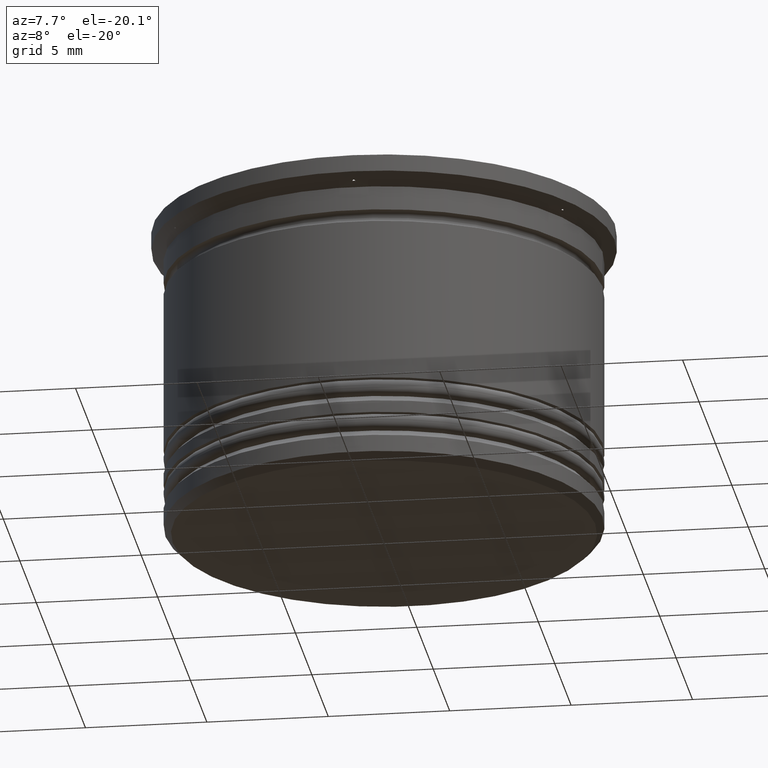
[diagram: clean part render]
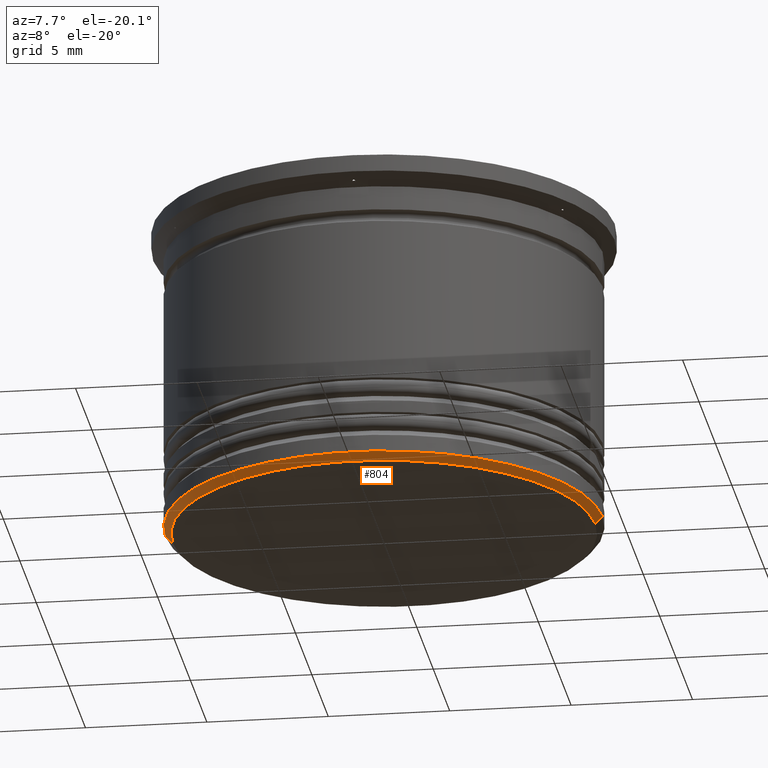
[diagram: same view with one face highlighted and labeled with its STEP entity id]
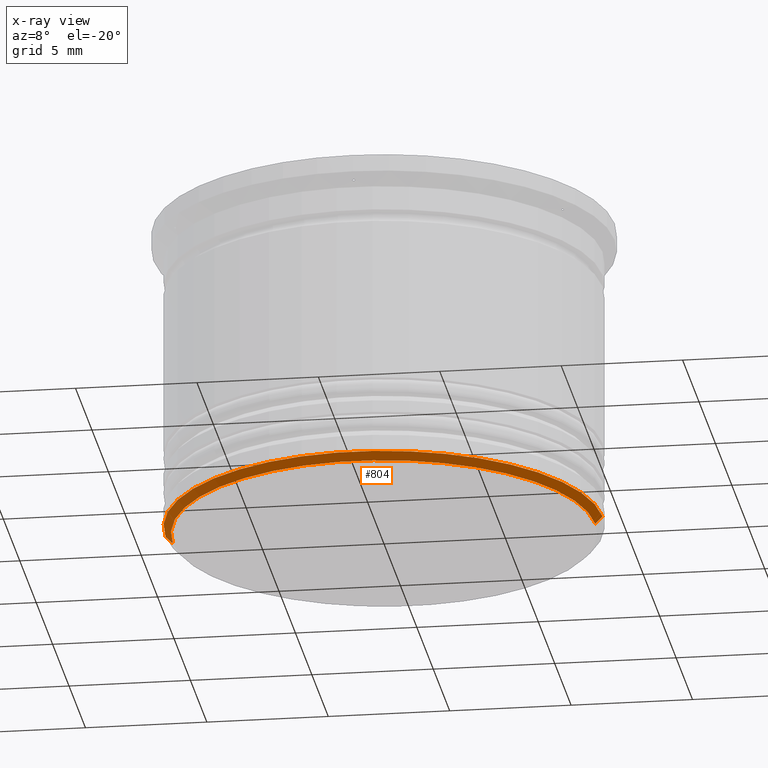
[diagram: x-ray of the same camera — body ghosted, the highlighted face saturated]
A machine part, auxiliary view. The second image highlights one B-rep face of the part: STEP entity #804.
The next image is the same camera in x-ray: the body ghosted, the highlighted face saturated — about 0% of this face is hidden behind the body in this view.
In plain terms, the highlighted conical surface has half-angle 45 deg.
Its self-contained STEP definition (entity closure, byte-faithful):
#20 = VERTEX_POINT ( 'NONE', #2118 ) ;
#63 = DIRECTION ( 'NONE',  ( 0.7071067811865516806, 0.000000000000000000, 0.7071067811865434649 ) ) ;
#76 = CARTESIAN_POINT ( 'NONE',  ( -9.000000000000001776, 1.102182119232617911E-15, -12.70000000000000817 ) ) ;
#83 = EDGE_CURVE ( 'NONE', #1686, #20, #1492, .T. ) ;
#204 = AXIS2_PLACEMENT_3D ( 'NONE', #512, #499, #1018 ) ;
#376 = ORIENTED_EDGE ( 'NONE', *, *, #2105, .T. ) ;
#399 = LINE ( 'NONE', #1392, #703 ) ;
#494 = DIRECTION ( 'NONE',  ( -0.000000000000000000, -0.000000000000000000, 1.000000000000000000 ) ) ;
#499 = DIRECTION ( 'NONE',  ( 0.000000000000000000, 0.000000000000000000, -1.000000000000000000 ) ) ;
#512 = CARTESIAN_POINT ( 'NONE',  ( 0.000000000000000000, 0.000000000000000000, -13.00000000000000178 ) ) ;
#567 = ORIENTED_EDGE ( 'NONE', *, *, #83, .F. ) ;
#635 = DIRECTION ( 'NONE',  ( -0.000000000000000000, -0.000000000000000000, 1.000000000000000000 ) ) ;
#636 = CARTESIAN_POINT ( 'NONE',  ( 0.000000000000000000, 0.000000000000000000, -12.70000000000000817 ) ) ;
#677 = ORIENTED_EDGE ( 'NONE', *, *, #1965, .F. ) ;
#703 = VECTOR ( 'NONE', #63, 1000.000000000000000 ) ;
#723 = LINE ( 'NONE', #1742, #1858 ) ;
#804 = ADVANCED_FACE ( 'NONE', ( #1661 ), #1137, .T. ) ;
#806 = CARTESIAN_POINT ( 'NONE',  ( 0.000000000000000000, 0.000000000000000000, -12.70000000000000817 ) ) ;
#975 = DIRECTION ( 'NONE',  ( -1.000000000000000000, 0.000000000000000000, 0.000000000000000000 ) ) ;
#1018 = DIRECTION ( 'NONE',  ( -1.000000000000000000, 0.000000000000000000, 0.000000000000000000 ) ) ;
#1041 = CARTESIAN_POINT ( 'NONE',  ( 8.700000000000004619, 0.000000000000000000, -13.00000000000000178 ) ) ;
#1137 = CONICAL_SURFACE ( 'NONE', #2049, 9.000000000000001776, 0.7853981633974541632 ) ;
#1212 = DIRECTION ( 'NONE',  ( -0.7071067811865516806, 8.659560562354984627E-17, 0.7071067811865434649 ) ) ;
#1248 = EDGE_CURVE ( 'NONE', #1369, #1686, #723, .T. ) ;
#1369 = VERTEX_POINT ( 'NONE', #1448 ) ;
#1392 = CARTESIAN_POINT ( 'NONE',  ( 9.000000000000001776, 0.000000000000000000, -12.70000000000000817 ) ) ;
#1448 = CARTESIAN_POINT ( 'NONE',  ( -8.700000000000004619, 1.083812417245408073E-15, -13.00000000000000178 ) ) ;
#1492 = CIRCLE ( 'NONE', #1598, 9.000000000000001776 ) ;
#1493 = ORIENTED_EDGE ( 'NONE', *, *, #1248, .F. ) ;
#1598 = AXIS2_PLACEMENT_3D ( 'NONE', #806, #635, #975 ) ;
#1661 = FACE_OUTER_BOUND ( 'NONE', #1810, .T. ) ;
#1686 = VERTEX_POINT ( 'NONE', #76 ) ;
#1742 = CARTESIAN_POINT ( 'NONE',  ( -9.000000000000001776, 1.102182119232617911E-15, -12.70000000000000817 ) ) ;
#1810 = EDGE_LOOP ( 'NONE', ( #1493, #677, #376, #567 ) ) ;
#1858 = VECTOR ( 'NONE', #1212, 1000.000000000000000 ) ;
#1957 = DIRECTION ( 'NONE',  ( 1.000000000000000000, 0.000000000000000000, 0.000000000000000000 ) ) ;
#1965 = EDGE_CURVE ( 'NONE', #2040, #1369, #2016, .T. ) ;
#2016 = CIRCLE ( 'NONE', #204, 8.700000000000004619 ) ;
#2040 = VERTEX_POINT ( 'NONE', #1041 ) ;
#2049 = AXIS2_PLACEMENT_3D ( 'NONE', #636, #494, #1957 ) ;
#2105 = EDGE_CURVE ( 'NONE', #2040, #20, #399, .T. ) ;
#2118 = CARTESIAN_POINT ( 'NONE',  ( 9.000000000000001776, 0.000000000000000000, -12.70000000000000817 ) ) ;